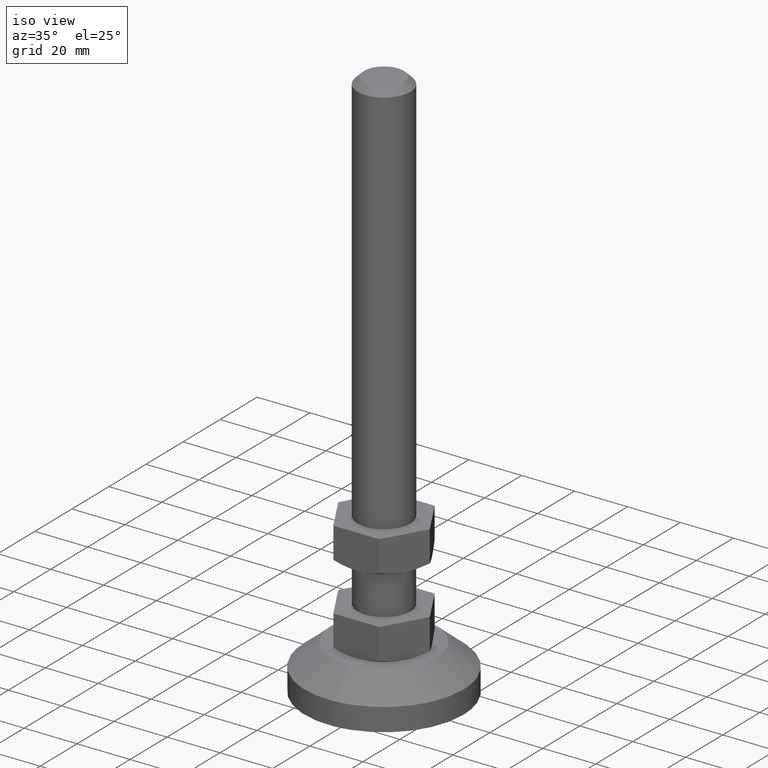
[diagram: clean part render]
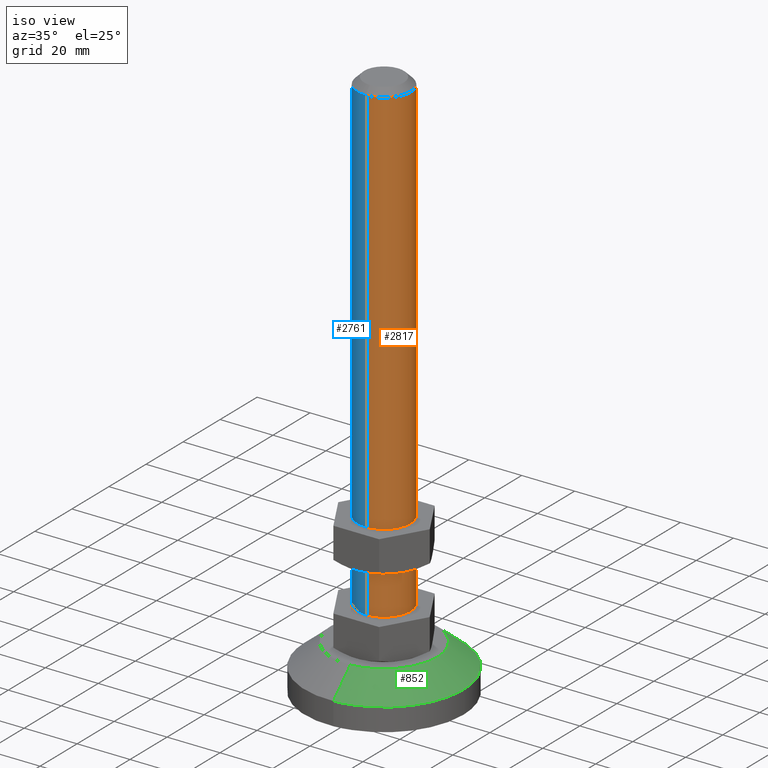
[diagram: same view with three faces highlighted in distinct colors, each labeled with its STEP entity id]
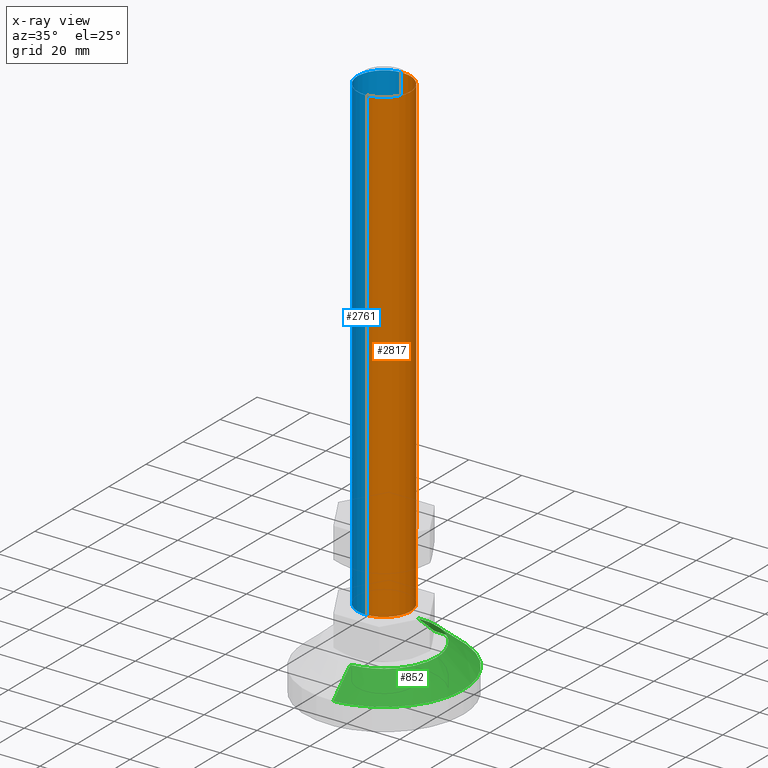
[diagram: x-ray of the same camera — body ghosted, the three highlighted faces saturated]
A machine part, iso view with three faces highlighted in distinct colors.
The next image is the same camera in x-ray (body ghosted, the three faces saturated) — at least one of them is partly hidden behind the body in this view.
Their STEP definitions:

[orange] entity #2817 — the highlighted face is a freeform B-spline surface patch.
#2600=CARTESIAN_POINT('',(0.087265357483095,9.999619230959812,207.499999999660100));
#2601=VERTEX_POINT('',#2600);
#2607=CARTESIAN_POINT('',(-0.610485395531879,9.981347984207456,207.500000000000000));
#2608=VERTEX_POINT('',#2607);
#2609=CARTESIAN_POINT('',(-0.610485395531879,9.981347984207456,207.500000000000000));
#2610=CARTESIAN_POINT('',(-0.378223333380037,9.995555023983696,207.499999999887000));
#2611=CARTESIAN_POINT('',(-0.145425530180977,10.001650955488310,207.499999999773110));
#2612=CARTESIAN_POINT('',(0.087265357483095,9.999619230959812,207.499999999660100));
#2613=B_SPLINE_CURVE_WITH_KNOTS('',3,(#2609,#2610,#2611,#2612),.UNSPECIFIED.,.F.,.U.,(4,4),(0.000000024053163,0.698140562802655),.UNSPECIFIED.);
#2614=EDGE_CURVE('',#2608,#2601,#2613,.T.);
#2650=CARTESIAN_POINT('',(0.610485395531878,-9.981347984207456,207.500000000000000));
#2651=VERTEX_POINT('',#2650);
#2659=CARTESIAN_POINT('',(10.0,0.0,207.500000000000000));
#2660=VERTEX_POINT('',#2659);
#2661=CARTESIAN_POINT('',(10.0,0.0,207.500000000000000));
#2662=CARTESIAN_POINT('',(10.0,-9.407060668883863,207.500000000000090));
#2663=CARTESIAN_POINT('',(0.610485395531879,-9.981347984207458,207.499999999999970));
#2671=(BOUNDED_CURVE()B_SPLINE_CURVE(2,(#2661,#2662,#2663),.UNSPECIFIED.,.F.,.U.)B_SPLINE_CURVE_WITH_KNOTS((3,3),(0.0,0.239332962238799),.UNSPECIFIED.)CURVE()GEOMETRIC_REPRESENTATION_ITEM()RATIONAL_B_SPLINE_CURVE((1.0,0.719603993286878,0.976072041666410))REPRESENTATION_ITEM(''));
#2672=EDGE_CURVE('',#2660,#2651,#2671,.T.);
#2674=CARTESIAN_POINT('',(0.087265357483095,9.999619230959812,207.499999999660130));
#2675=CARTESIAN_POINT('',(10.000000000001487,9.913112103644840,207.499999999830070));
#2676=CARTESIAN_POINT('',(10.0,0.0,207.500000000000000));
#2684=(BOUNDED_CURVE()B_SPLINE_CURVE(2,(#2674,#2675,#2676),.UNSPECIFIED.,.F.,.U.)B_SPLINE_CURVE_WITH_KNOTS((3,3),(0.751539894378961,1.0),.UNSPECIFIED.)CURVE()GEOMETRIC_REPRESENTATION_ITEM()RATIONAL_B_SPLINE_CURVE((0.996414027998638,0.708910879671694,1.0))REPRESENTATION_ITEM(''));
#2685=EDGE_CURVE('',#2601,#2660,#2684,.T.);
#2712=CARTESIAN_POINT('',(0.610485395531879,-9.981347984207456,30.000000000000011));
#2713=VERTEX_POINT('',#2712);
#2731=CARTESIAN_POINT('',(0.610485395531878,-9.981347984207456,207.500000000000000));
#2732=CARTESIAN_POINT('',(0.610485395531879,-9.981347984207456,30.000000000000011));
#2733=QUASI_UNIFORM_CURVE('',1,(#2731,#2732),.UNSPECIFIED.,.F.,.U.);
#2734=EDGE_CURVE('',#2651,#2713,#2733,.T.);
#2739=CARTESIAN_POINT('',(-0.610485395531879,9.981347984207456,30.000000000000011));
#2740=VERTEX_POINT('',#2739);
#2741=CARTESIAN_POINT('',(-0.610485395531879,9.981347984207456,207.500000000000000));
#2742=CARTESIAN_POINT('',(-0.610485395531879,9.981347984207456,30.000000000000011));
#2743=QUASI_UNIFORM_CURVE('',1,(#2741,#2742),.UNSPECIFIED.,.F.,.U.);
#2744=EDGE_CURVE('',#2608,#2740,#2743,.T.);
#2762=CARTESIAN_POINT('',(-0.610485395348570,9.981347984218667,211.937500000000000));
#2763=CARTESIAN_POINT('',(9.370862588870097,10.591833379567237,211.937500000000110));
#2764=CARTESIAN_POINT('',(9.981347984218667,0.610485395348570,211.937500000000000));
#2765=CARTESIAN_POINT('',(10.591833379567237,-9.370862588870097,211.937500000000110));
#2766=CARTESIAN_POINT('',(0.610485395348570,-9.981347984218667,211.937500000000000));
#2767=CARTESIAN_POINT('',(-0.610485395348570,9.981347984218667,25.451562499999991));
#2768=CARTESIAN_POINT('',(9.370862588870097,10.591833379567237,25.451562499999998));
#2769=CARTESIAN_POINT('',(9.981347984218667,0.610485395348570,25.451562499999991));
#2770=CARTESIAN_POINT('',(10.591833379567237,-9.370862588870097,25.451562499999998));
#2771=CARTESIAN_POINT('',(0.610485395348570,-9.981347984218667,25.451562499999991));
#2779=(BOUNDED_SURFACE()B_SPLINE_SURFACE(2,1,((#2762,#2767),(#2763,#2768),(#2764,#2769),(#2765,#2770),(#2766,#2771)),.UNSPECIFIED.,.F.,.F.,.U.)B_SPLINE_SURFACE_WITH_KNOTS((3,2,3),(2,2),(0.0,16.568542494923800,33.137084989847587),(0.0,186.485937500000010),.UNSPECIFIED.)GEOMETRIC_REPRESENTATION_ITEM()RATIONAL_B_SPLINE_SURFACE(((1.0,1.0),(0.707106781186548,0.707106781186548),(1.0,1.0),(0.707106781186548,0.707106781186548),(1.0,1.0)))REPRESENTATION_ITEM('')SURFACE());
#2780=CARTESIAN_POINT('',(10.0,0.0,30.0));
#2781=VERTEX_POINT('',#2780);
#2782=CARTESIAN_POINT('',(10.0,0.0,30.0));
#2783=CARTESIAN_POINT('',(10.0,-9.407060668883863,30.0));
#2784=CARTESIAN_POINT('',(0.610485395531879,-9.981347984207458,30.000000000000004));
#2792=(BOUNDED_CURVE()B_SPLINE_CURVE(2,(#2782,#2783,#2784),.UNSPECIFIED.,.F.,.U.)B_SPLINE_CURVE_WITH_KNOTS((3,3),(0.0,0.239332962238799),.UNSPECIFIED.)CURVE()GEOMETRIC_REPRESENTATION_ITEM()RATIONAL_B_SPLINE_CURVE((1.0,0.719603993286878,0.976072041666410))REPRESENTATION_ITEM(''));
#2793=EDGE_CURVE('',#2781,#2713,#2792,.T.);
#2794=ORIENTED_EDGE('',*,*,#2793,.F.);
#2795=CARTESIAN_POINT('',(-0.610485395531881,9.981347984207460,30.000000000000007));
#2796=CARTESIAN_POINT('',(-0.305527633077802,10.0,30.000000000000004));
#2797=CARTESIAN_POINT('',(0.0,10.0,30.0));
#2798=CARTESIAN_POINT('',(10.000000000000002,10.000000000000002,30.000000000000004));
#2799=CARTESIAN_POINT('',(10.0,0.0,30.0));
#2807=(BOUNDED_CURVE()B_SPLINE_CURVE(2,(#2795,#2796,#2797,#2798,#2799),.UNSPECIFIED.,.F.,.U.)B_SPLINE_CURVE_WITH_KNOTS((3,2,3),(0.739332962238799,0.750000000000000,1.0),.UNSPECIFIED.)CURVE()GEOMETRIC_REPRESENTATION_ITEM()RATIONAL_B_SPLINE_CURVE((0.976072041666410,0.987502787899669,1.0,0.707106781186548,1.0))REPRESENTATION_ITEM(''));
#2808=EDGE_CURVE('',#2740,#2781,#2807,.T.);
#2809=ORIENTED_EDGE('',*,*,#2808,.F.);
#2810=ORIENTED_EDGE('',*,*,#2744,.F.);
#2811=ORIENTED_EDGE('',*,*,#2614,.T.);
#2812=ORIENTED_EDGE('',*,*,#2685,.T.);
#2813=ORIENTED_EDGE('',*,*,#2672,.T.);
#2814=ORIENTED_EDGE('',*,*,#2734,.T.);
#2815=EDGE_LOOP('',(#2794,#2809,#2810,#2811,#2812,#2813,#2814));
#2816=FACE_OUTER_BOUND('',#2815,.T.);
#2817=ADVANCED_FACE('',(#2816),#2779,.T.);

[blue] entity #2761 — the highlighted face is a freeform B-spline surface patch.
#2576=CARTESIAN_POINT('',(-0.087265357483095,-9.999619230959805,207.499999999660100));
#2577=VERTEX_POINT('',#2576);
#2578=CARTESIAN_POINT('',(-10.0,0.0,207.500000000000000));
#2579=VERTEX_POINT('',#2578);
#2580=CARTESIAN_POINT('',(-0.087265357483095,-9.999619230959805,207.499999999660160));
#2581=CARTESIAN_POINT('',(-10.000000000001481,-9.913112103644833,207.499999999830010));
#2582=CARTESIAN_POINT('',(-10.0,0.0,207.500000000000000));
#2590=(BOUNDED_CURVE()B_SPLINE_CURVE(2,(#2580,#2581,#2582),.UNSPECIFIED.,.F.,.U.)B_SPLINE_CURVE_WITH_KNOTS((3,3),(0.251539894378961,0.500000000000000),.UNSPECIFIED.)CURVE()GEOMETRIC_REPRESENTATION_ITEM()RATIONAL_B_SPLINE_CURVE((0.996414027998638,0.708910879671694,1.0))REPRESENTATION_ITEM(''));
#2591=EDGE_CURVE('',#2577,#2579,#2590,.T.);
#2607=CARTESIAN_POINT('',(-0.610485395531879,9.981347984207456,207.500000000000000));
#2608=VERTEX_POINT('',#2607);
#2616=CARTESIAN_POINT('',(-10.0,0.0,207.500000000000000));
#2617=CARTESIAN_POINT('',(-10.0,9.407060668883862,207.500000000000090));
#2618=CARTESIAN_POINT('',(-0.610485395531881,9.981347984207460,207.500000000000000));
#2626=(BOUNDED_CURVE()B_SPLINE_CURVE(2,(#2616,#2617,#2618),.UNSPECIFIED.,.F.,.U.)B_SPLINE_CURVE_WITH_KNOTS((3,3),(0.500000000000000,0.739332962238799),.UNSPECIFIED.)CURVE()GEOMETRIC_REPRESENTATION_ITEM()RATIONAL_B_SPLINE_CURVE((1.0,0.719603993286878,0.976072041666410))REPRESENTATION_ITEM(''));
#2627=EDGE_CURVE('',#2579,#2608,#2626,.T.);
#2650=CARTESIAN_POINT('',(0.610485395531878,-9.981347984207456,207.500000000000000));
#2651=VERTEX_POINT('',#2650);
#2652=CARTESIAN_POINT('',(0.610485395531878,-9.981347984207456,207.500000000000000));
#2653=CARTESIAN_POINT('',(0.378223333380037,-9.995555023983696,207.499999999886800));
#2654=CARTESIAN_POINT('',(0.145425530180976,-10.001650955488310,207.499999999773510));
#2655=CARTESIAN_POINT('',(-0.087265357483095,-9.999619230959805,207.499999999660100));
#2656=B_SPLINE_CURVE_WITH_KNOTS('',3,(#2652,#2653,#2654,#2655),.UNSPECIFIED.,.F.,.U.,(4,4),(0.000000024053164,0.698140562802654),.UNSPECIFIED.);
#2657=EDGE_CURVE('',#2651,#2577,#2656,.T.);
#2694=CARTESIAN_POINT('',(0.610485395348570,-9.981347984218667,211.937500000000000));
#2695=CARTESIAN_POINT('',(-9.370862588870097,-10.591833379567237,211.937500000000110));
#2696=CARTESIAN_POINT('',(-9.981347984218667,-0.610485395348570,211.937500000000000));
#2697=CARTESIAN_POINT('',(-10.591833379567237,9.370862588870097,211.937500000000110));
#2698=CARTESIAN_POINT('',(-0.610485395348570,9.981347984218667,211.937500000000000));
#2699=CARTESIAN_POINT('',(0.610485395348570,-9.981347984218667,25.451562499999991));
#2700=CARTESIAN_POINT('',(-9.370862588870097,-10.591833379567237,25.451562499999998));
#2701=CARTESIAN_POINT('',(-9.981347984218667,-0.610485395348570,25.451562499999991));
#2702=CARTESIAN_POINT('',(-10.591833379567237,9.370862588870097,25.451562499999998));
#2703=CARTESIAN_POINT('',(-0.610485395348570,9.981347984218667,25.451562499999991));
#2711=(BOUNDED_SURFACE()B_SPLINE_SURFACE(2,1,((#2694,#2699),(#2695,#2700),(#2696,#2701),(#2697,#2702),(#2698,#2703)),.UNSPECIFIED.,.F.,.F.,.U.)B_SPLINE_SURFACE_WITH_KNOTS((3,2,3),(2,2),(0.0,16.568542494923800,33.137084989847587),(0.0,186.485937500000010),.UNSPECIFIED.)GEOMETRIC_REPRESENTATION_ITEM()RATIONAL_B_SPLINE_SURFACE(((1.0,1.0),(0.707106781186548,0.707106781186548),(1.0,1.0),(0.707106781186548,0.707106781186548),(1.0,1.0)))REPRESENTATION_ITEM('')SURFACE());
#2712=CARTESIAN_POINT('',(0.610485395531879,-9.981347984207456,30.000000000000011));
#2713=VERTEX_POINT('',#2712);
#2714=CARTESIAN_POINT('',(-10.0,0.0,30.0));
#2715=VERTEX_POINT('',#2714);
#2716=CARTESIAN_POINT('',(0.610485395531879,-9.981347984207458,30.000000000000004));
#2717=CARTESIAN_POINT('',(0.305527633077801,-10.0,30.000000000000004));
#2718=CARTESIAN_POINT('',(0.0,-10.0,30.0));
#2719=CARTESIAN_POINT('',(-10.000000000000002,-10.000000000000002,30.000000000000004));
#2720=CARTESIAN_POINT('',(-10.0,0.0,30.0));
#2728=(BOUNDED_CURVE()B_SPLINE_CURVE(2,(#2716,#2717,#2718,#2719,#2720),.UNSPECIFIED.,.F.,.U.)B_SPLINE_CURVE_WITH_KNOTS((3,2,3),(0.239332962238799,0.250000000000000,0.500000000000000),.UNSPECIFIED.)CURVE()GEOMETRIC_REPRESENTATION_ITEM()RATIONAL_B_SPLINE_CURVE((0.976072041666410,0.987502787899669,1.0,0.707106781186548,1.0))REPRESENTATION_ITEM(''));
#2729=EDGE_CURVE('',#2713,#2715,#2728,.T.);
#2730=ORIENTED_EDGE('',*,*,#2729,.F.);
#2731=CARTESIAN_POINT('',(0.610485395531878,-9.981347984207456,207.500000000000000));
#2732=CARTESIAN_POINT('',(0.610485395531879,-9.981347984207456,30.000000000000011));
#2733=QUASI_UNIFORM_CURVE('',1,(#2731,#2732),.UNSPECIFIED.,.F.,.U.);
#2734=EDGE_CURVE('',#2651,#2713,#2733,.T.);
#2735=ORIENTED_EDGE('',*,*,#2734,.F.);
#2736=ORIENTED_EDGE('',*,*,#2657,.T.);
#2737=ORIENTED_EDGE('',*,*,#2591,.T.);
#2738=ORIENTED_EDGE('',*,*,#2627,.T.);
#2739=CARTESIAN_POINT('',(-0.610485395531879,9.981347984207456,30.000000000000011));
#2740=VERTEX_POINT('',#2739);
#2741=CARTESIAN_POINT('',(-0.610485395531879,9.981347984207456,207.500000000000000));
#2742=CARTESIAN_POINT('',(-0.610485395531879,9.981347984207456,30.000000000000011));
#2743=QUASI_UNIFORM_CURVE('',1,(#2741,#2742),.UNSPECIFIED.,.F.,.U.);
#2744=EDGE_CURVE('',#2608,#2740,#2743,.T.);
#2745=ORIENTED_EDGE('',*,*,#2744,.T.);
#2746=CARTESIAN_POINT('',(-10.0,0.0,30.0));
#2747=CARTESIAN_POINT('',(-10.0,9.407060668883862,30.0));
#2748=CARTESIAN_POINT('',(-0.610485395531881,9.981347984207460,30.000000000000007));
#2756=(BOUNDED_CURVE()B_SPLINE_CURVE(2,(#2746,#2747,#2748),.UNSPECIFIED.,.F.,.U.)B_SPLINE_CURVE_WITH_KNOTS((3,3),(0.500000000000000,0.739332962238799),.UNSPECIFIED.)CURVE()GEOMETRIC_REPRESENTATION_ITEM()RATIONAL_B_SPLINE_CURVE((1.0,0.719603993286878,0.976072041666410))REPRESENTATION_ITEM(''));
#2757=EDGE_CURVE('',#2715,#2740,#2756,.T.);
#2758=ORIENTED_EDGE('',*,*,#2757,.F.);
#2759=EDGE_LOOP('',(#2730,#2735,#2736,#2737,#2738,#2745,#2758));
#2760=FACE_OUTER_BOUND('',#2759,.T.);
#2761=ADVANCED_FACE('',(#2760),#2711,.T.);

[green] entity #852 — the highlighted face is a freeform B-spline surface patch.
#653=CARTESIAN_POINT('',(1.220970791328431,-19.962695968485530,16.999999999927301));
#654=VERTEX_POINT('',#653);
#672=CARTESIAN_POINT('',(20.0,0.0,17.0));
#673=VERTEX_POINT('',#672);
#674=CARTESIAN_POINT('',(20.0,0.0,17.0));
#675=CARTESIAN_POINT('',(20.000000000002643,-18.814121337566046,16.999999999963652));
#676=CARTESIAN_POINT('',(1.220970791328431,-19.962695968485527,16.999999999927294));
#684=(BOUNDED_CURVE()B_SPLINE_CURVE(2,(#674,#675,#676),.UNSPECIFIED.,.F.,.U.)B_SPLINE_CURVE_WITH_KNOTS((3,3),(0.500000000000000,0.739332962236557),.UNSPECIFIED.)CURVE()GEOMETRIC_REPRESENTATION_ITEM()RATIONAL_B_SPLINE_CURVE((1.0,0.719603993289505,0.976072041661605))REPRESENTATION_ITEM(''));
#685=EDGE_CURVE('',#673,#654,#684,.T.);
#687=CARTESIAN_POINT('',(-1.220970791328436,19.962695968485530,16.999999999927301));
#688=VERTEX_POINT('',#687);
#689=CARTESIAN_POINT('',(-1.220970791328436,19.962695968485527,16.999999999927294));
#690=CARTESIAN_POINT('',(-0.611055266290872,20.000000000085233,16.999999999928342));
#691=CARTESIAN_POINT('',(-5.132081E-012,20.000000000083912,16.999999999929450));
#692=CARTESIAN_POINT('',(19.999999999997510,20.000000000040671,16.999999999965805));
#693=CARTESIAN_POINT('',(20.0,0.0,17.0));
#701=(BOUNDED_CURVE()B_SPLINE_CURVE(2,(#689,#690,#691,#692,#693),.UNSPECIFIED.,.F.,.U.)B_SPLINE_CURVE_WITH_KNOTS((3,2,3),(0.239332962236557,0.250000000000000,0.500000000000000),.UNSPECIFIED.)CURVE()GEOMETRIC_REPRESENTATION_ITEM()RATIONAL_B_SPLINE_CURVE((0.976072041661605,0.987502787897043,1.0,0.707106781186548,1.0))REPRESENTATION_ITEM(''));
#702=EDGE_CURVE('',#688,#673,#701,.T.);
#786=CARTESIAN_POINT('',(-1.205708655813425,19.713162268831869,17.209774899999999));
#787=CARTESIAN_POINT('',(18.507453613018441,20.918870924645290,17.209774900000003));
#788=CARTESIAN_POINT('',(19.713162268831869,1.205708655813425,17.209774899999999));
#789=CARTESIAN_POINT('',(20.918870924645290,-18.507453613018441,17.209774900000003));
#790=CARTESIAN_POINT('',(1.205708655813425,-19.713162268831869,17.209774899999999));
#791=CARTESIAN_POINT('',(-1.847099874301517,30.199815994751610,8.393984727499998));
#792=CARTESIAN_POINT('',(28.352716120450101,32.046915869053130,8.393984727499998));
#793=CARTESIAN_POINT('',(30.199815994751610,1.847099874301517,8.393984727499998));
#794=CARTESIAN_POINT('',(32.046915869053130,-28.352716120450101,8.393984727499998));
#795=CARTESIAN_POINT('',(1.847099874301517,-30.199815994751610,8.393984727499998));
#803=(BOUNDED_SURFACE()B_SPLINE_SURFACE(2,1,((#786,#791),(#787,#792),(#788,#793),(#789,#794),(#790,#795)),.UNSPECIFIED.,.F.,.F.,.U.)B_SPLINE_SURFACE_WITH_KNOTS((3,2,3),(2,2),(0.0,50.130196386203828,100.260392772407700),(0.0,13.714935122998130),.UNSPECIFIED.)GEOMETRIC_REPRESENTATION_ITEM()RATIONAL_B_SPLINE_SURFACE(((1.0,1.0),(0.707106781186548,0.707106781186548),(1.0,1.0),(0.707106781186548,0.707106781186548),(1.0,1.0)))REPRESENTATION_ITEM('')SURFACE());
#804=CARTESIAN_POINT('',(-1.831456186323542,29.944043952677362,8.609003999935760));
#805=VERTEX_POINT('',#804);
#806=CARTESIAN_POINT('',(30.0,0.0,8.609004000000001));
#807=VERTEX_POINT('',#806);
#808=CARTESIAN_POINT('',(-1.831456186323542,29.944043952677362,8.609003999935760));
#809=CARTESIAN_POINT('',(-0.916582898964701,30.000000000054253,8.609003999936682));
#810=CARTESIAN_POINT('',(2.650618E-010,30.000000000053419,8.609003999937663));
#811=CARTESIAN_POINT('',(30.000000000128477,30.000000000025889,8.609003999969785));
#812=CARTESIAN_POINT('',(30.0,0.0,8.609004000000001));
#820=(BOUNDED_CURVE()B_SPLINE_CURVE(2,(#808,#809,#810,#811,#812),.UNSPECIFIED.,.F.,.U.)B_SPLINE_CURVE_WITH_KNOTS((3,2,3),(0.239332962238793,0.250000000000000,0.500000000000000),.UNSPECIFIED.)CURVE()GEOMETRIC_REPRESENTATION_ITEM()RATIONAL_B_SPLINE_CURVE((0.976072041666397,0.987502787899662,1.0,0.707106781186547,1.0))REPRESENTATION_ITEM(''));
#821=EDGE_CURVE('',#805,#807,#820,.T.);
#822=ORIENTED_EDGE('',*,*,#821,.F.);
#823=CARTESIAN_POINT('',(-1.220970791328436,19.962695968485530,16.999999999927301));
#824=CARTESIAN_POINT('',(-1.831456186601374,29.944043952698721,8.609003999935760));
#825=QUASI_UNIFORM_CURVE('',1,(#823,#824),.UNSPECIFIED.,.F.,.U.);
#826=EDGE_CURVE('',#688,#805,#825,.T.);
#827=ORIENTED_EDGE('',*,*,#826,.F.);
#828=ORIENTED_EDGE('',*,*,#702,.T.);
#829=ORIENTED_EDGE('',*,*,#685,.T.);
#830=CARTESIAN_POINT('',(1.831456186323538,-29.944043952677362,8.609003999935762));
#831=VERTEX_POINT('',#830);
#832=CARTESIAN_POINT('',(1.220970791328431,-19.962695968485530,16.999999999927301));
#833=CARTESIAN_POINT('',(1.831456186601366,-29.944043952698721,8.609003999935762));
#834=QUASI_UNIFORM_CURVE('',1,(#832,#833),.UNSPECIFIED.,.F.,.U.);
#835=EDGE_CURVE('',#654,#831,#834,.T.);
#836=ORIENTED_EDGE('',*,*,#835,.T.);
#837=CARTESIAN_POINT('',(30.0,0.0,8.609004000000001));
#838=CARTESIAN_POINT('',(29.999999999863409,-28.221182006678102,8.609003999967879));
#839=CARTESIAN_POINT('',(1.831456186323538,-29.944043952677362,8.609003999935762));
#847=(BOUNDED_CURVE()B_SPLINE_CURVE(2,(#837,#838,#839),.UNSPECIFIED.,.F.,.U.)B_SPLINE_CURVE_WITH_KNOTS((3,3),(0.500000000000000,0.739332962238793),.UNSPECIFIED.)CURVE()GEOMETRIC_REPRESENTATION_ITEM()RATIONAL_B_SPLINE_CURVE((1.0,0.719603993286885,0.976072041666397))REPRESENTATION_ITEM(''));
#848=EDGE_CURVE('',#807,#831,#847,.T.);
#849=ORIENTED_EDGE('',*,*,#848,.F.);
#850=EDGE_LOOP('',(#822,#827,#828,#829,#836,#849));
#851=FACE_OUTER_BOUND('',#850,.T.);
#852=ADVANCED_FACE('',(#851),#803,.T.);